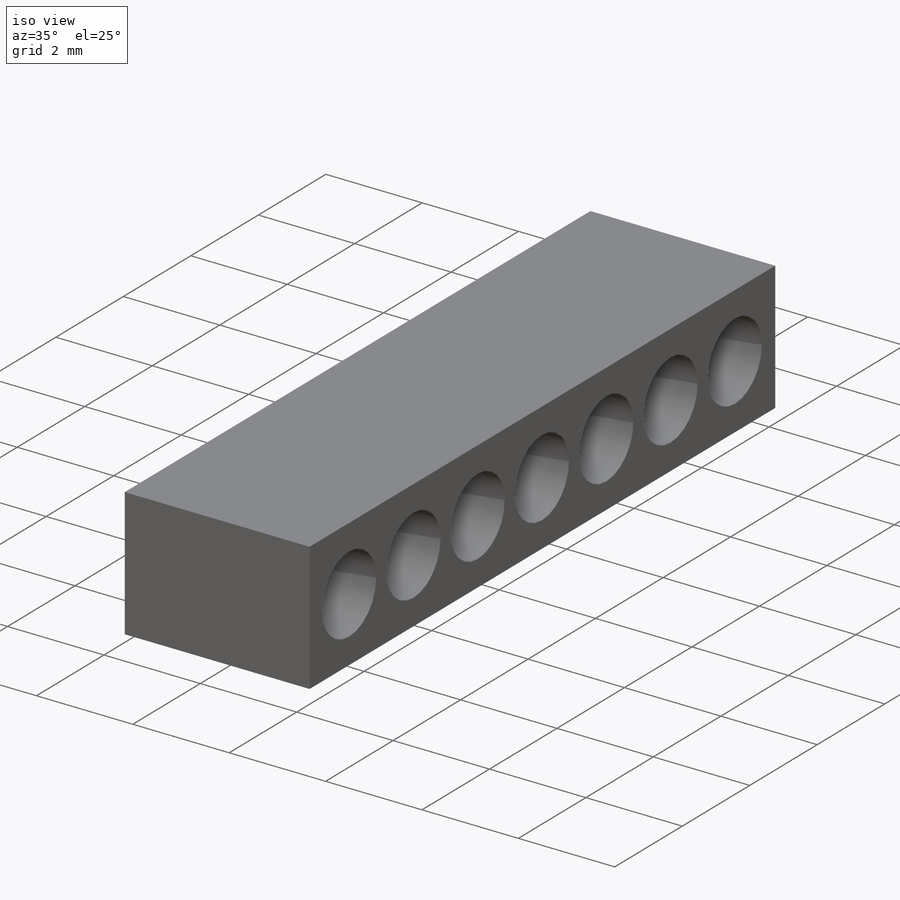
[diagram: iso view]
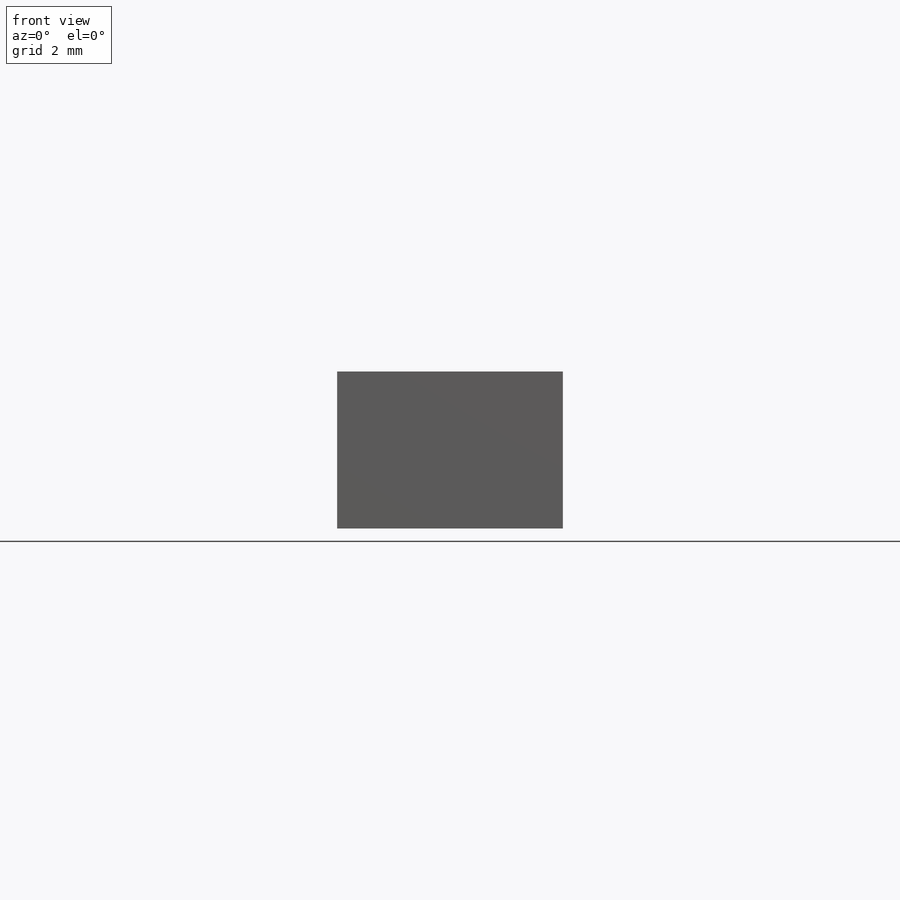
[diagram: front view]
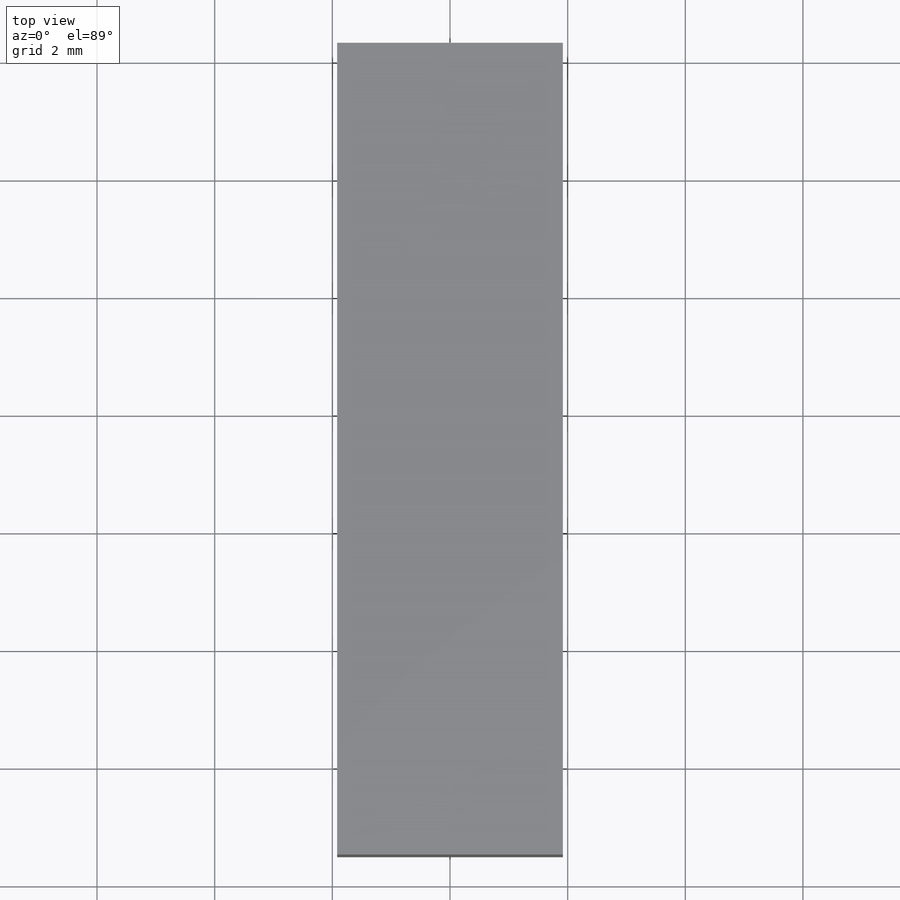
[diagram: top view]
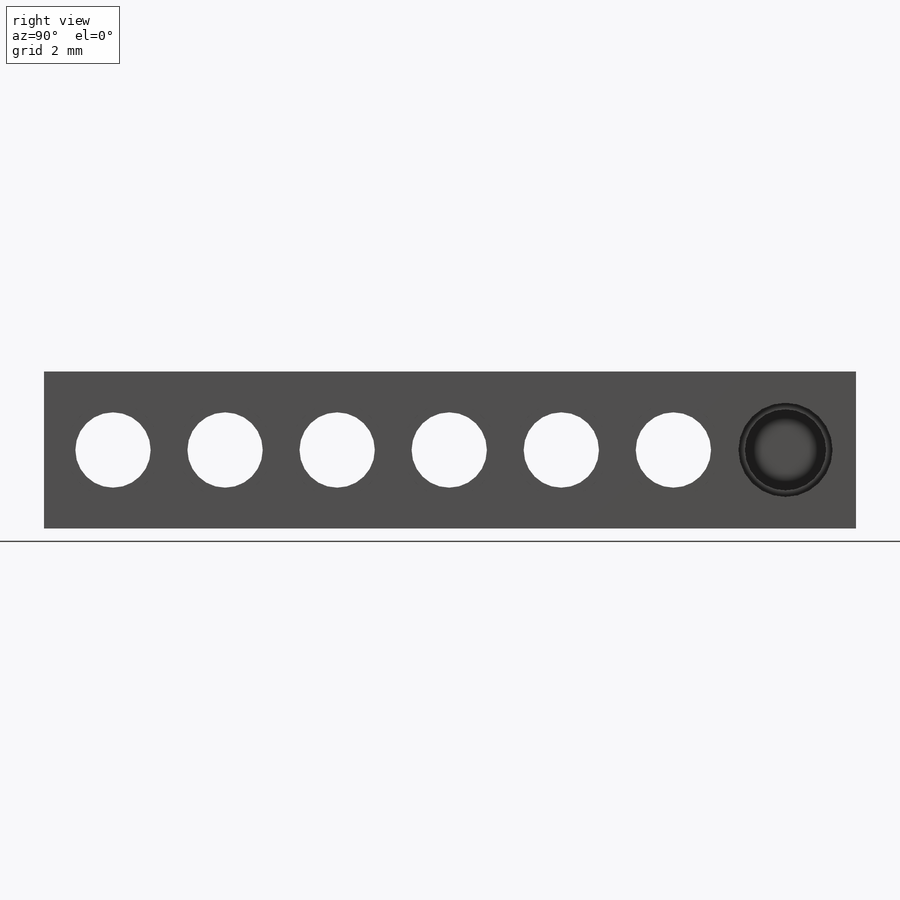
[diagram: right view]
SOLIDWORKS PART (.sldprt)
format: sldprt  version: not decoded by parser v0  size: 278,016 bytes
history: native  units: mm
features: sketch x6, cut_extrude x4, material x1, extrude x1 (+13 scaffold rows collapsed)
feature tree (25):
  scaffold x13  (default folders/planes/origin — collapsed)
  material  "Material <not specified>"
  sketch  "Sketch1"  dims[D1=15.0mm D2=3.8354mm]
  extrude  "Boss-Extrude1"  Depth=2.667mm
  sketch  "Sketch4"  dims[D1=1.6mm D2=1.6mm D4=1.6mm D6=1.6mm D8=1.6mm D10=1.6mm D12=1.6mm D3=1.905mm D5=1.905mm D7=1.905mm D9=1.905mm D11=1.905mm D13=1.905mm]
  cut_extrude  "Cut-Extrude1"  Depth=1.9177mm
  sketch  "Sketch5"  dims[c1.D1=1.28mm c1.D2=1.28mm c1.D3=1.28mm c1.D4=1.28mm c1.D5=1.28mm c1.D6=1.28mm c2.D3=1.905mm]
  cut_extrude  "Cut-Extrude2"  [1 undecoded]
  sketch  "Sketch6"  dims[D1=1.38mm]
  cut_extrude  "Cut-Extrude3"  Depth=1.27mm
  sketch  "Sketch9"
  cut_extrude  "Cut-Extrude5"  Depth=1.2mm
  sketch  "Sketch10"
decode coverage: 8 of 11 modeling features carry decoded parameters
note: 1 parameter value undecoded
note: suppression state not decoded; provenance and decode notes live in map.json
